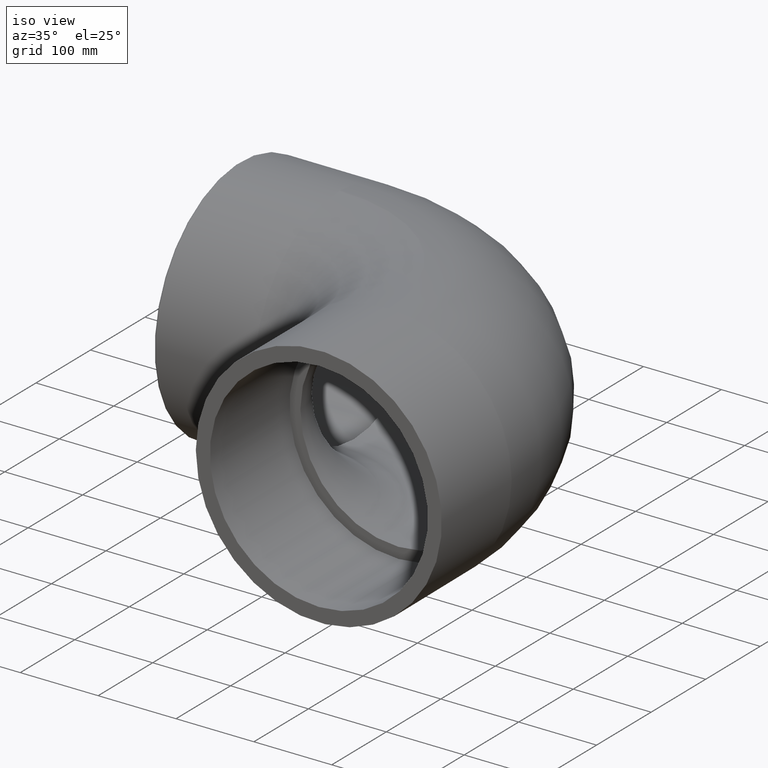
[diagram: clean part render]
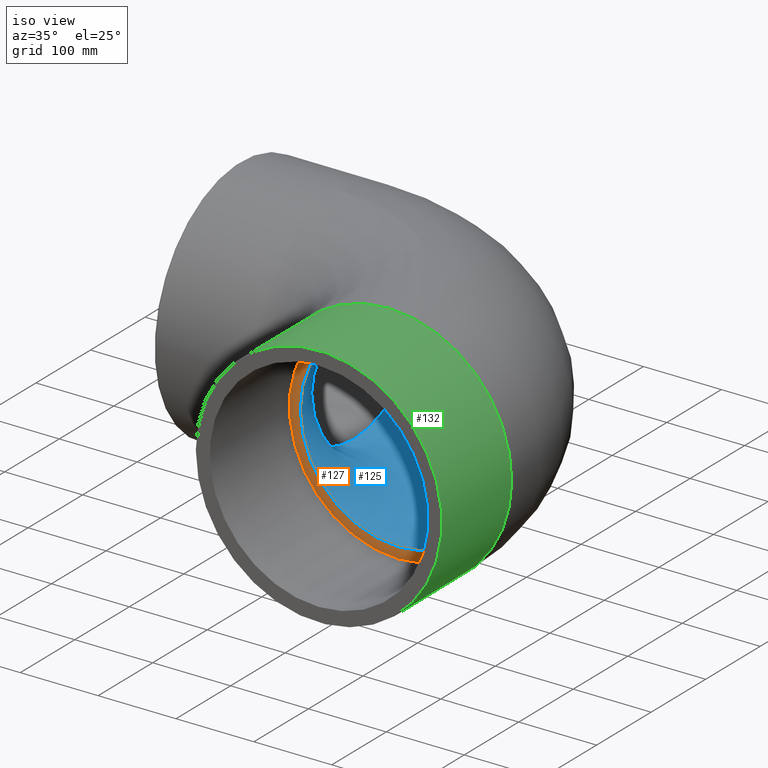
[diagram: same view with three faces highlighted in distinct colors, each labeled with its STEP entity id]
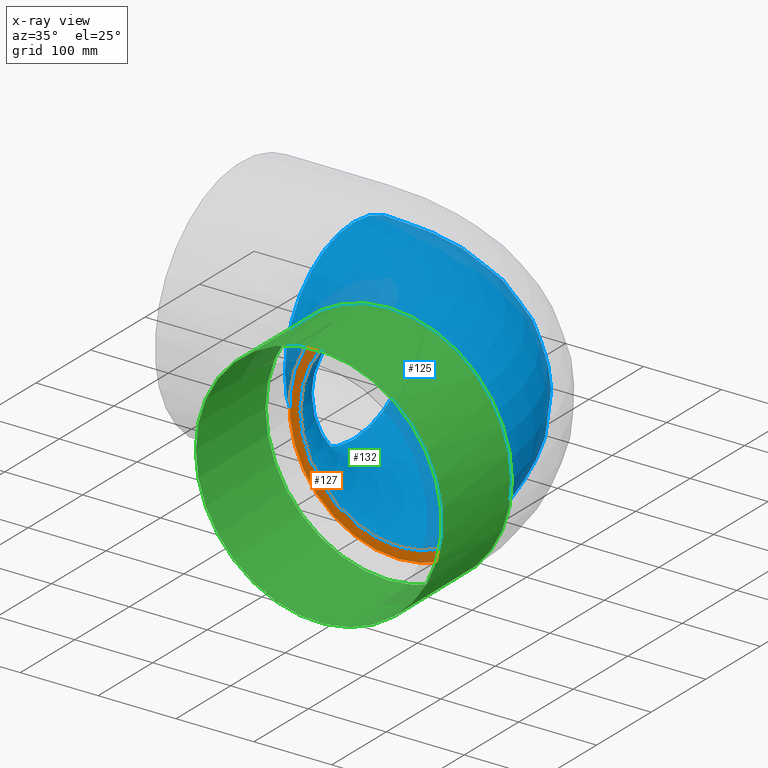
[diagram: x-ray of the same camera — body ghosted, the three highlighted faces saturated]
A machine part, iso view with three faces highlighted in distinct colors.
The next image is the same camera in x-ray (body ghosted, the three faces saturated) — at least one of them is partly hidden behind the body in this view.
Their STEP definitions:

[orange] entity #127 — the highlighted planar face has unit normal (0, 1, 0).
#15=PLANE('',#144);
#25=FACE_BOUND('',#50,.T.);
#36=FACE_OUTER_BOUND('',#49,.T.);
#49=EDGE_LOOP('',(#104));
#50=EDGE_LOOP('',(#105));
#67=CIRCLE('',#139,126.);
#69=CIRCLE('',#142,140.);
#78=VERTEX_POINT('',#208);
#80=VERTEX_POINT('',#213);
#89=EDGE_CURVE('',#78,#78,#67,.T.);
#91=EDGE_CURVE('',#80,#80,#69,.T.);
#104=ORIENTED_EDGE('',*,*,#91,.F.);
#105=ORIENTED_EDGE('',*,*,#89,.T.);
#127=ADVANCED_FACE('',(#36,#25),#15,.F.);
#139=AXIS2_PLACEMENT_3D('',#209,#164,#165);
#142=AXIS2_PLACEMENT_3D('',#214,#170,#171);
#144=AXIS2_PLACEMENT_3D('',#217,#174,#175);
#164=DIRECTION('center_axis',(6.12323399573677E-17,1.,0.));
#165=DIRECTION('ref_axis',(1.,-6.12323399573677E-17,0.));
#170=DIRECTION('center_axis',(6.12323399573677E-17,1.,0.));
#171=DIRECTION('ref_axis',(0.,0.,-1.));
#174=DIRECTION('center_axis',(6.12323399573677E-17,1.,0.));
#175=DIRECTION('ref_axis',(0.,0.,-1.));
#208=CARTESIAN_POINT('',(1.77635683940025E-14,-192.,126.));
#209=CARTESIAN_POINT('Origin',(0.,-192.,0.));
#213=CARTESIAN_POINT('',(-2.89016644598775E-14,-192.,140.));
#214=CARTESIAN_POINT('Origin',(-1.17566092718146E-14,-192.,0.));
#217=CARTESIAN_POINT('Origin',(-8.37307243486173E-15,-192.,-8.19582827291096E-15));

[blue] entity #125 — the highlighted toroidal blend (fillet) surface has major radius 192 mm and minor (blend) radius 126 mm.
#23=FACE_BOUND('',#46,.T.);
#34=FACE_OUTER_BOUND('',#45,.T.);
#45=EDGE_LOOP('',(#100));
#46=EDGE_LOOP('',(#101));
#67=CIRCLE('',#139,126.);
#68=CIRCLE('',#140,126.);
#78=VERTEX_POINT('',#208);
#79=VERTEX_POINT('',#210);
#89=EDGE_CURVE('',#78,#78,#67,.T.);
#90=EDGE_CURVE('',#79,#79,#68,.T.);
#100=ORIENTED_EDGE('',*,*,#89,.F.);
#101=ORIENTED_EDGE('',*,*,#90,.F.);
#122=TOROIDAL_SURFACE('',#138,192.,126.);
#125=ADVANCED_FACE('',(#34,#23),#122,.F.);
#138=AXIS2_PLACEMENT_3D('',#207,#162,#163);
#139=AXIS2_PLACEMENT_3D('',#209,#164,#165);
#140=AXIS2_PLACEMENT_3D('',#211,#166,#167);
#162=DIRECTION('center_axis',(0.,0.,-1.));
#163=DIRECTION('ref_axis',(-1.,0.,0.));
#164=DIRECTION('center_axis',(6.12323399573677E-17,1.,0.));
#165=DIRECTION('ref_axis',(1.,-6.12323399573677E-17,0.));
#166=DIRECTION('center_axis',(1.,0.,0.));
#167=DIRECTION('ref_axis',(0.,1.,0.));
#207=CARTESIAN_POINT('Origin',(-192.,-192.,0.));
#208=CARTESIAN_POINT('',(1.77635683940025E-14,-192.,126.));
#209=CARTESIAN_POINT('Origin',(0.,-192.,0.));
#210=CARTESIAN_POINT('',(-192.,1.54305496692567E-14,126.));
#211=CARTESIAN_POINT('Origin',(-192.,0.,0.));

[green] entity #132 — the highlighted cylindrical surface (bore or boss wall) has radius 158 mm, axis along (0, 1, 0).
#21=CYLINDRICAL_SURFACE('',#154,158.);
#30=FACE_BOUND('',#60,.T.);
#41=FACE_OUTER_BOUND('',#59,.T.);
#59=EDGE_LOOP('',(#114));
#60=EDGE_LOOP('',(#115));
#73=CIRCLE('',#150,158.);
#75=CIRCLE('',#153,158.);
#84=VERTEX_POINT('',#225);
#86=VERTEX_POINT('',#230);
#95=EDGE_CURVE('',#84,#84,#73,.T.);
#97=EDGE_CURVE('',#86,#86,#75,.T.);
#114=ORIENTED_EDGE('',*,*,#97,.T.);
#115=ORIENTED_EDGE('',*,*,#95,.F.);
#132=ADVANCED_FACE('',(#41,#30),#21,.T.);
#150=AXIS2_PLACEMENT_3D('',#226,#186,#187);
#153=AXIS2_PLACEMENT_3D('',#231,#192,#193);
#154=AXIS2_PLACEMENT_3D('',#232,#194,#195);
#186=DIRECTION('center_axis',(6.12323399573677E-17,1.,0.));
#187=DIRECTION('ref_axis',(0.,0.,-1.));
#192=DIRECTION('center_axis',(6.12323399573677E-17,1.,0.));
#193=DIRECTION('ref_axis',(0.,0.,-1.));
#194=DIRECTION('center_axis',(6.12323399573677E-17,1.,0.));
#195=DIRECTION('ref_axis',(-1.,6.12323399573676E-17,0.));
#225=CARTESIAN_POINT('',(-1.77635683940025E-14,-210.,158.));
#226=CARTESIAN_POINT('Origin',(-1.28587913910472E-14,-210.,0.));
#230=CARTESIAN_POINT('',(-158.,-338.,0.));
#231=CARTESIAN_POINT('Origin',(-2.06965309055903E-14,-338.,0.));
#232=CARTESIAN_POINT('Origin',(-1.67776611483187E-14,-274.,0.));